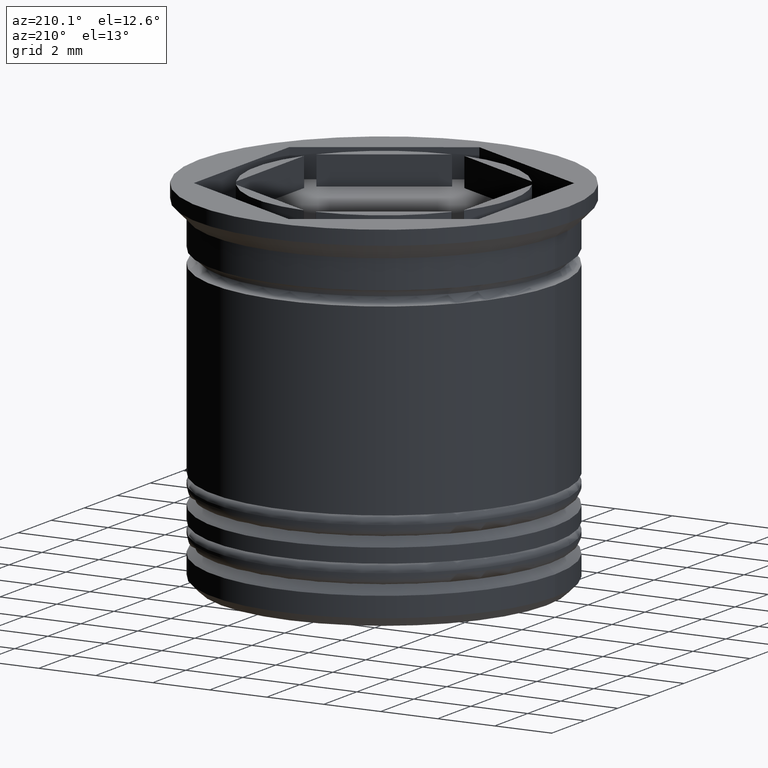
[diagram: clean part render]
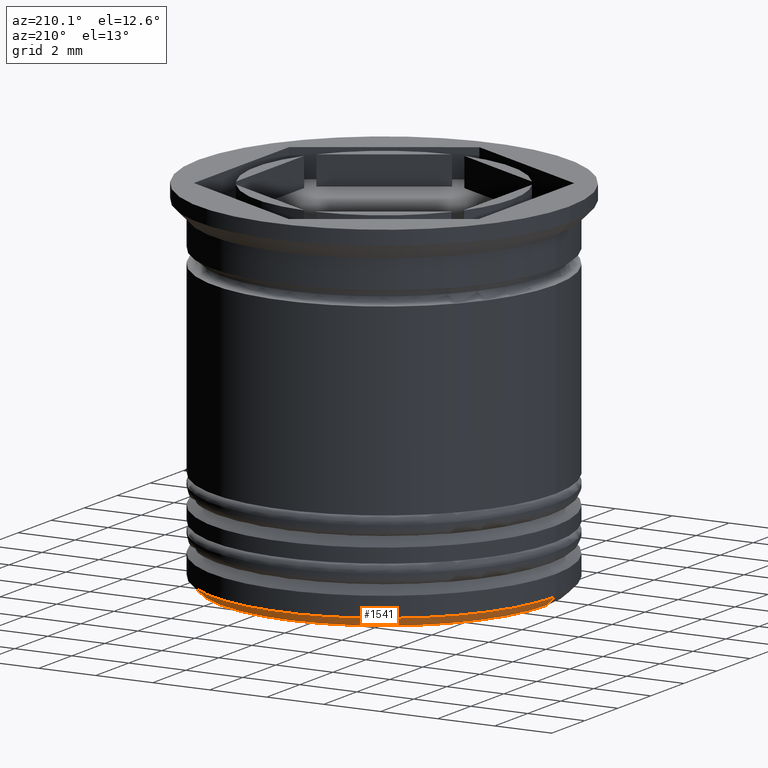
[diagram: same view with one face highlighted and labeled with its STEP entity id]
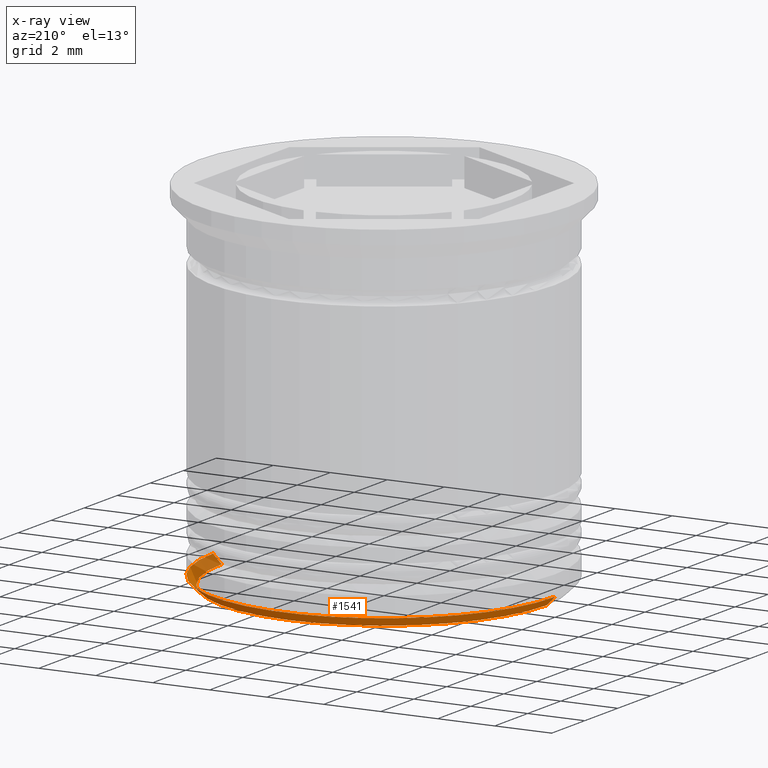
[diagram: x-ray of the same camera — body ghosted, the highlighted face saturated]
A machine part, auxiliary view. The second image highlights one B-rep face of the part: STEP entity #1541.
The next image is the same camera in x-ray: the body ghosted, the highlighted face saturated — about 14% of this face is hidden behind the body in this view.
In plain terms, the highlighted conical surface has half-angle 45 deg.
Its self-contained STEP definition (entity closure, byte-faithful):
#16 = EDGE_CURVE ( 'NONE', #775, #229, #42, .T. ) ;
#17 = CARTESIAN_POINT ( 'NONE',  ( -6.000000000000001776, 7.347880794884121708E-16, -12.19999999999999574 ) ) ;
#42 = CIRCLE ( 'NONE', #1424, 6.000000000000001776 ) ;
#44 = LINE ( 'NONE', #661, #627 ) ;
#63 = VERTEX_POINT ( 'NONE', #1227 ) ;
#97 = DIRECTION ( 'NONE',  ( 1.000000000000000000, 0.000000000000000000, 0.000000000000000000 ) ) ;
#121 = LINE ( 'NONE', #1830, #1464 ) ;
#145 = CIRCLE ( 'NONE', #596, 5.699999999999995737 ) ;
#164 = EDGE_CURVE ( 'NONE', #63, #229, #121, .T. ) ;
#229 = VERTEX_POINT ( 'NONE', #17 ) ;
#381 = ORIENTED_EDGE ( 'NONE', *, *, #1095, .F. ) ;
#383 = DIRECTION ( 'NONE',  ( -1.000000000000000000, 0.000000000000000000, 0.000000000000000000 ) ) ;
#399 = ORIENTED_EDGE ( 'NONE', *, *, #721, .F. ) ;
#471 = ORIENTED_EDGE ( 'NONE', *, *, #16, .F. ) ;
#535 = DIRECTION ( 'NONE',  ( -1.000000000000000000, 0.000000000000000000, 0.000000000000000000 ) ) ;
#569 = CONICAL_SURFACE ( 'NONE', #1757, 6.000000000000001776, 0.7853981633974497223 ) ;
#596 = AXIS2_PLACEMENT_3D ( 'NONE', #1767, #996, #383 ) ;
#627 = VECTOR ( 'NONE', #1104, 999.9999999999998863 ) ;
#661 = CARTESIAN_POINT ( 'NONE',  ( 6.000000000000001776, 0.000000000000000000, -12.19999999999999574 ) ) ;
#721 = EDGE_CURVE ( 'NONE', #1965, #775, #44, .T. ) ;
#775 = VERTEX_POINT ( 'NONE', #1747 ) ;
#843 = CARTESIAN_POINT ( 'NONE',  ( 0.000000000000000000, 0.000000000000000000, -12.19999999999999574 ) ) ;
#921 = DIRECTION ( 'NONE',  ( -0.000000000000000000, -0.000000000000000000, 1.000000000000000000 ) ) ;
#953 = ORIENTED_EDGE ( 'NONE', *, *, #164, .T. ) ;
#996 = DIRECTION ( 'NONE',  ( 0.000000000000000000, 0.000000000000000000, -1.000000000000000000 ) ) ;
#1095 = EDGE_CURVE ( 'NONE', #63, #1965, #145, .T. ) ;
#1104 = DIRECTION ( 'NONE',  ( 0.7071067811865486830, 0.000000000000000000, 0.7071067811865464625 ) ) ;
#1227 = CARTESIAN_POINT ( 'NONE',  ( -5.699999999999995737, 7.164183775012013464E-16, -12.50000000000000000 ) ) ;
#1303 = DIRECTION ( 'NONE',  ( -0.000000000000000000, -0.000000000000000000, 1.000000000000000000 ) ) ;
#1352 = FACE_OUTER_BOUND ( 'NONE', #1407, .T. ) ;
#1407 = EDGE_LOOP ( 'NONE', ( #381, #953, #471, #399 ) ) ;
#1424 = AXIS2_PLACEMENT_3D ( 'NONE', #843, #1303, #535 ) ;
#1464 = VECTOR ( 'NONE', #1849, 999.9999999999998863 ) ;
#1521 = CARTESIAN_POINT ( 'NONE',  ( 0.000000000000000000, 0.000000000000000000, -12.19999999999999574 ) ) ;
#1541 = ADVANCED_FACE ( 'NONE', ( #1352 ), #569, .T. ) ;
#1747 = CARTESIAN_POINT ( 'NONE',  ( 6.000000000000001776, 0.000000000000000000, -12.19999999999999574 ) ) ;
#1757 = AXIS2_PLACEMENT_3D ( 'NONE', #1521, #921, #97 ) ;
#1767 = CARTESIAN_POINT ( 'NONE',  ( 0.000000000000000000, 0.000000000000000000, -12.50000000000000000 ) ) ;
#1830 = CARTESIAN_POINT ( 'NONE',  ( -6.000000000000001776, 7.347880794884120722E-16, -12.19999999999999574 ) ) ;
#1849 = DIRECTION ( 'NONE',  ( -0.7071067811865486830, 8.659560562354945184E-17, 0.7071067811865464625 ) ) ;
#1888 = CARTESIAN_POINT ( 'NONE',  ( 5.699999999999995737, 0.000000000000000000, -12.50000000000000000 ) ) ;
#1965 = VERTEX_POINT ( 'NONE', #1888 ) ;